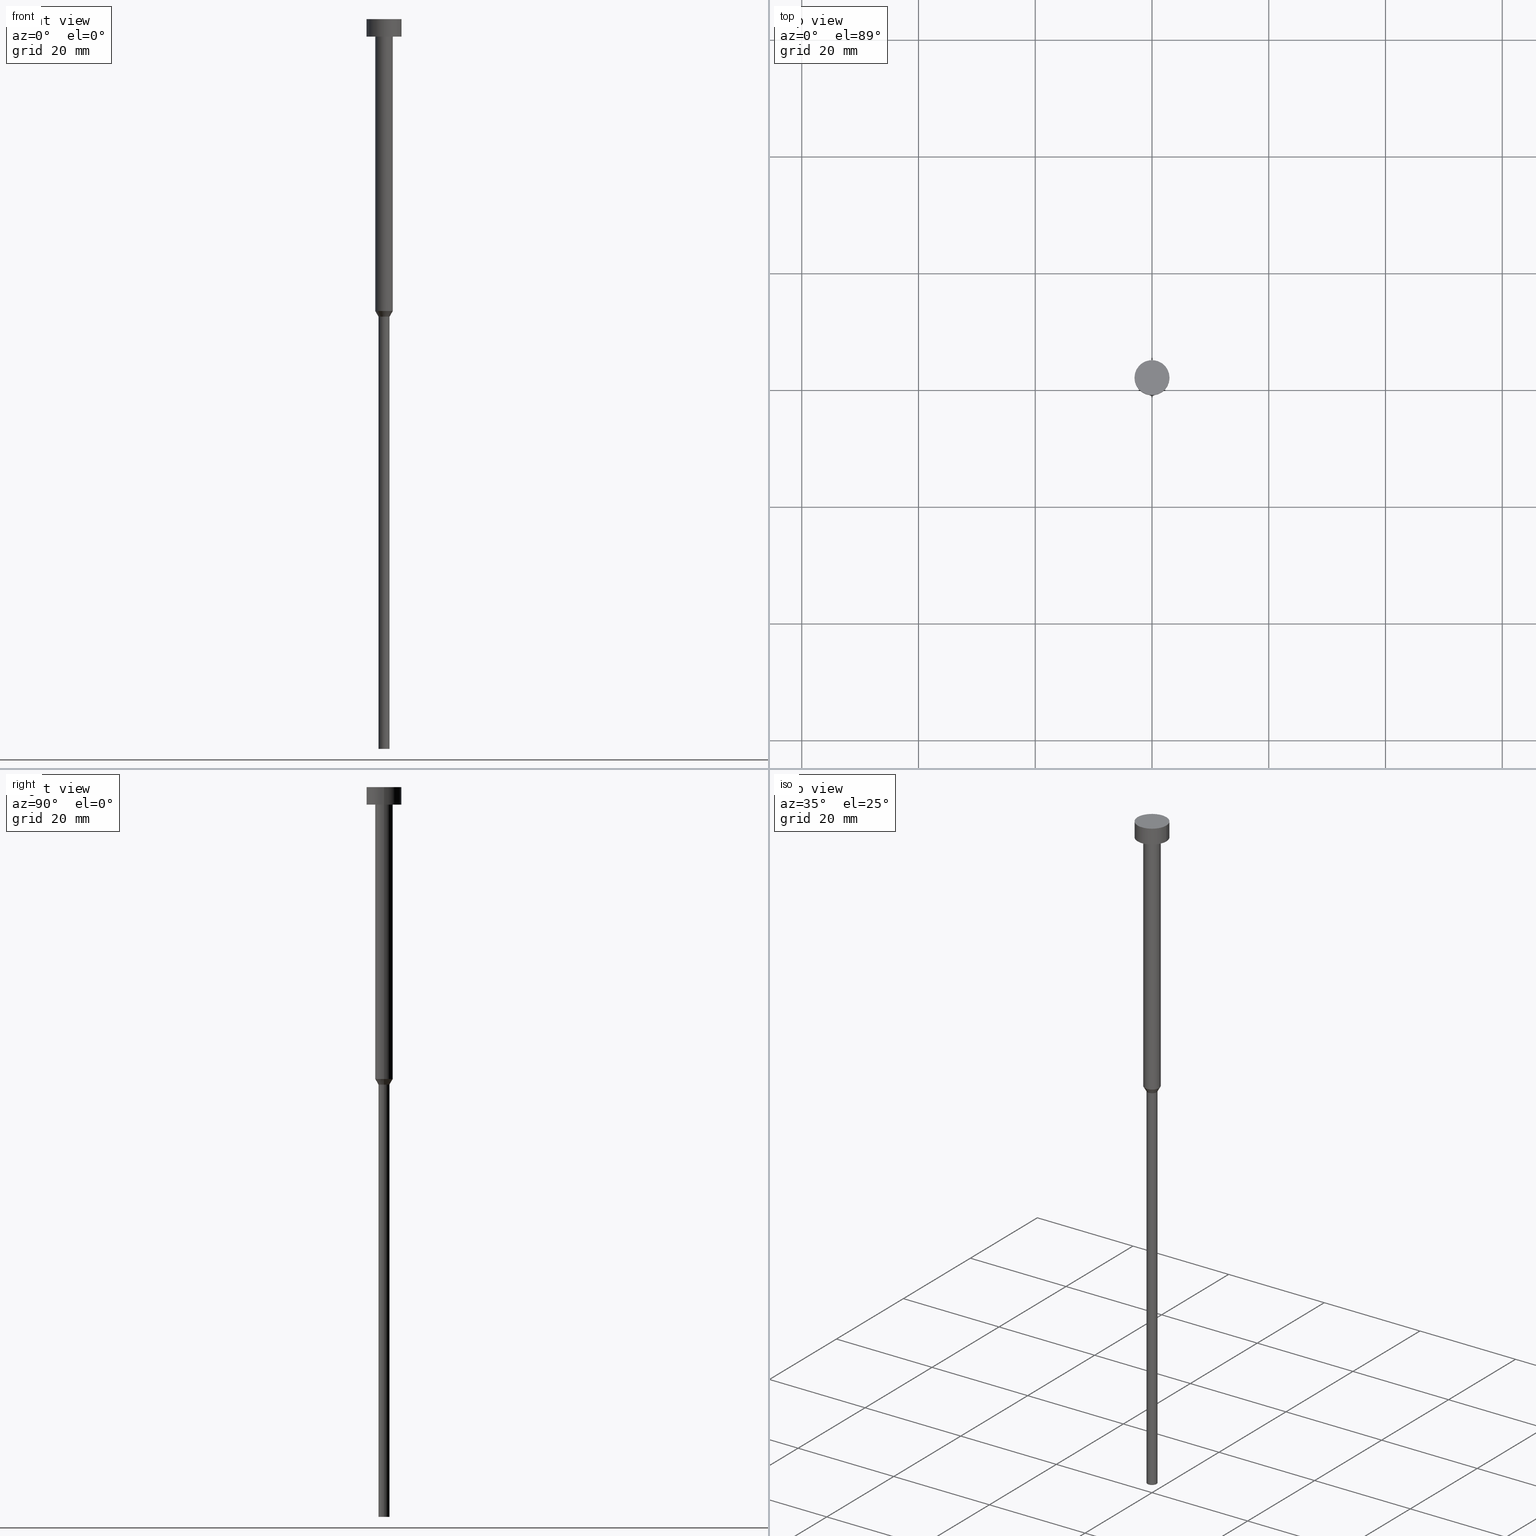
[diagram: canonical four-view strip — front | top / right | iso, engineering-drawing reading convention]
A machine part, canonical four-view strip (front | top / right | iso — engineering-drawing reading convention). The complete STEP part file that produces these views, byte-faithful:
ISO-10303-21;
HEADER;
FILE_DESCRIPTION (( 'STEP AP203' ),
    '1' );
FILE_NAME ('d028.STEP',
    '2023-02-13T10:04:01',
    ( '' ),
    ( '' ),
    'SwSTEP 2.0',
    'SolidWorks 2019',
    '' );
FILE_SCHEMA (( 'CONFIG_CONTROL_DESIGN' ));
ENDSEC;

DATA;
#1 = FACE_OUTER_BOUND ( 'NONE', #224, .T. ) ;
#2 = CARTESIAN_POINT ( 'NONE',  ( 1.500000000000000000, 0.000000000000000000, -50.00000000000000000 ) ) ;
#3 = CARTESIAN_POINT ( 'NONE',  ( 0.000000000000000000, 0.000000000000000000, 0.000000000000000000 ) ) ;
#4 = AXIS2_PLACEMENT_3D ( 'NONE', #69, #143, #247 ) ;
#5 = DIRECTION ( 'NONE',  ( 1.000000000000000000, 0.000000000000000000, 0.000000000000000000 ) ) ;
#6 = ORIENTED_EDGE ( 'NONE', *, *, #353, .F. ) ;
#7 = CIRCLE ( 'NONE', #283, 1.500000000000000000 ) ;
#8 = APPROVAL ( #25, 'NEUR�EN�' ) ;
#9 = EDGE_LOOP ( 'NONE', ( #169, #315 ) ) ;
#10 = VERTEX_POINT ( 'NONE', #78 ) ;
#11 = AXIS2_PLACEMENT_3D ( 'NONE', #322, #260, #327 ) ;
#12 = EDGE_CURVE ( 'NONE', #10, #193, #319, .T. ) ;
#13 = AXIS2_PLACEMENT_3D ( 'NONE', #232, #118, #313 ) ;
#14 = ORIENTED_EDGE ( 'NONE', *, *, #74, .T. ) ;
#15 = CARTESIAN_POINT ( 'NONE',  ( -1.500000000000000000, 1.836970198721029934E-16, -3.000000000000000888 ) ) ;
#16 = PERSON_AND_ORGANIZATION ( #113, #88 ) ;
#17 = ORIENTED_EDGE ( 'NONE', *, *, #294, .F. ) ;
#18 = DIRECTION ( 'NONE',  ( 1.000000000000000000, 0.000000000000000000, 0.000000000000000000 ) ) ;
#19 = EDGE_CURVE ( 'NONE', #193, #343, #46, .T. ) ;
#20 = CALENDAR_DATE ( 2023, 13, 2 ) ;
#21 = CARTESIAN_POINT ( 'NONE',  ( 0.000000000000000000, 0.000000000000000000, 0.000000000000000000 ) ) ;
#22 = CARTESIAN_POINT ( 'NONE',  ( 0.000000000000000000, 0.000000000000000000, -3.673940397442059868E-16 ) ) ;
#23 = DIRECTION ( 'NONE',  ( -0.000000000000000000, -0.000000000000000000, 1.000000000000000000 ) ) ;
#24 = CARTESIAN_POINT ( 'NONE',  ( 0.000000000000000000, 0.000000000000000000, -50.00000000000000000 ) ) ;
#25 = APPROVAL_STATUS ( 'not_yet_approved' ) ;
#26 = CC_DESIGN_PERSON_AND_ORGANIZATION_ASSIGNMENT ( #276, #106, ( #215 ) ) ;
#27 = CARTESIAN_POINT ( 'NONE',  ( -3.000000000000000000, 3.673940397442059868E-16, 0.000000000000000000 ) ) ;
#28 = DIRECTION ( 'NONE',  ( 1.000000000000000000, 0.000000000000000000, 0.000000000000000000 ) ) ;
#29 = DIRECTION ( 'NONE',  ( -0.000000000000000000, -0.000000000000000000, 1.000000000000000000 ) ) ;
#30 = CIRCLE ( 'NONE', #166, 3.000000000000000000 ) ;
#31 = AXIS2_PLACEMENT_3D ( 'NONE', #264, #142, #270 ) ;
#32 = PLANE ( 'NONE',  #289 ) ;
#33 = LINE ( 'NONE', #105, #341 ) ;
#34 = FACE_OUTER_BOUND ( 'NONE', #281, .T. ) ;
#35 = ADVANCED_FACE ( 'NONE', ( #104 ), #223, .T. ) ;
#36 = PERSON_AND_ORGANIZATION ( #113, #88 ) ;
#37 = ORIENTED_EDGE ( 'NONE', *, *, #122, .F. ) ;
#38 = EDGE_CURVE ( 'NONE', #266, #95, #222, .T. ) ;
#39 = PERSON_AND_ORGANIZATION ( #113, #88 ) ;
#40 = EDGE_LOOP ( 'NONE', ( #173, #130, #158, #109 ) ) ;
#41 = ORIENTED_EDGE ( 'NONE', *, *, #19, .F. ) ;
#42 = FACE_OUTER_BOUND ( 'NONE', #9, .T. ) ;
#43 = ORIENTED_EDGE ( 'NONE', *, *, #74, .F. ) ;
#44 = APPLICATION_CONTEXT ( 'configuration controlled 3d designs of mechanical parts and assemblies' ) ;
#45 = DIRECTION ( 'NONE',  ( 0.000000000000000000, 0.000000000000000000, -1.000000000000000000 ) ) ;
#46 = LINE ( 'NONE', #349, #216 ) ;
#47 = EDGE_CURVE ( 'NONE', #188, #159, #308, .T. ) ;
#48 = VERTEX_POINT ( 'NONE', #119 ) ;
#49 = CARTESIAN_POINT ( 'NONE',  ( 0.000000000000000000, 0.000000000000000000, 0.000000000000000000 ) ) ;
#50 = AXIS2_PLACEMENT_3D ( 'NONE', #196, #55, #28 ) ;
#51 = ADVANCED_FACE ( 'NONE', ( #146, #279 ), #32, .T. ) ;
#52 = CARTESIAN_POINT ( 'NONE',  ( 0.000000000000000000, 0.000000000000000000, -50.95262794416287733 ) ) ;
#53 = AXIS2_PLACEMENT_3D ( 'NONE', #282, #67, #189 ) ;
#54 = CYLINDRICAL_SURFACE ( 'NONE', #93, 1.500000000000000000 ) ;
#55 = DIRECTION ( 'NONE',  ( 0.000000000000000000, -0.000000000000000000, 1.000000000000000000 ) ) ;
#56 = DIRECTION ( 'NONE',  ( -0.000000000000000000, -0.000000000000000000, 1.000000000000000000 ) ) ;
#57 = MANIFOLD_SOLID_BREP ( 'Rotovat1', #121 ) ;
#58 = AXIS2_PLACEMENT_3D ( 'NONE', #133, #298, #228 ) ;
#59 = CIRCLE ( 'NONE', #352, 3.000000000000000000 ) ;
#60 = ADVANCED_FACE ( 'NONE', ( #140 ), #107, .T. ) ;
#61 = SECURITY_CLASSIFICATION_LEVEL ( 'unclassified' ) ;
#62 = ORIENTED_EDGE ( 'NONE', *, *, #345, .F. ) ;
#63 = ORIENTED_EDGE ( 'NONE', *, *, #38, .T. ) ;
#64 = CC_DESIGN_APPROVAL ( #340, ( #215 ) ) ;
#65 = ORIENTED_EDGE ( 'NONE', *, *, #210, .F. ) ;
#66 = APPROVAL_STATUS ( 'not_yet_approved' ) ;
#67 = DIRECTION ( 'NONE',  ( -0.000000000000000000, -0.000000000000000000, 1.000000000000000000 ) ) ;
#68 = DIRECTION ( 'NONE',  ( 1.000000000000000000, 0.000000000000000000, 0.000000000000000000 ) ) ;
#69 = CARTESIAN_POINT ( 'NONE',  ( 0.000000000000000000, 0.000000000000000000, -125.0000000000000000 ) ) ;
#70 = ORIENTED_EDGE ( 'NONE', *, *, #149, .T. ) ;
#71 = CIRCLE ( 'NONE', #198, 3.000000000000000000 ) ;
#72 = EDGE_LOOP ( 'NONE', ( #211, #344 ) ) ;
#73 = ORIENTED_EDGE ( 'NONE', *, *, #47, .T. ) ;
#74 = EDGE_CURVE ( 'NONE', #131, #159, #7, .T. ) ;
#75 = SHAPE_DEFINITION_REPRESENTATION ( #206, #259 ) ;
#76 = COORDINATED_UNIVERSAL_TIME_OFFSET ( 1, 0, .AHEAD. ) ;
#77 = UNCERTAINTY_MEASURE_WITH_UNIT (LENGTH_MEASURE( 1.000000000000000082E-05 ), #286, 'distance_accuracy_value', 'NONE');
#78 = CARTESIAN_POINT ( 'NONE',  ( -0.9499999999999998446, 1.163414459189985682E-16, -125.0000000000000000 ) ) ;
#79 = DATE_TIME_ROLE ( 'classification_date' ) ;
#80 = DIRECTION ( 'NONE',  ( -0.000000000000000000, -0.000000000000000000, 1.000000000000000000 ) ) ;
#81 = SECURITY_CLASSIFICATION ( '', '', #61 ) ;
#82 = VERTEX_POINT ( 'NONE', #15 ) ;
#83 = CC_DESIGN_DATE_AND_TIME_ASSIGNMENT ( #325, #79, ( #81 ) ) ;
#84 = CIRCLE ( 'NONE', #91, 0.9499999999999998446 ) ;
#85 = COORDINATED_UNIVERSAL_TIME_OFFSET ( 1, 0, .AHEAD. ) ;
#86 = FACE_OUTER_BOUND ( 'NONE', #40, .T. ) ;
#87 = CARTESIAN_POINT ( 'NONE',  ( 1.500000000000000000, 0.000000000000000000, -50.00000000000000000 ) ) ;
#88 = ORGANIZATION ( 'NEUR�EN�', 'NEUR�EN�', '' ) ;
#89 = LINE ( 'NONE', #305, #220 ) ;
#90 = DIRECTION ( 'NONE',  ( -0.000000000000000000, -0.000000000000000000, 1.000000000000000000 ) ) ;
#91 = AXIS2_PLACEMENT_3D ( 'NONE', #231, #23, #234 ) ;
#92 = CARTESIAN_POINT ( 'NONE',  ( -3.000000000000000000, 3.673940397442059868E-16, -3.000000000000000888 ) ) ;
#93 = AXIS2_PLACEMENT_3D ( 'NONE', #183, #115, #5 ) ;
#94 = CARTESIAN_POINT ( 'NONE',  ( 0.000000000000000000, 0.000000000000000000, -3.000000000000000888 ) ) ;
#95 = VERTEX_POINT ( 'NONE', #293 ) ;
#96 = ORIENTED_EDGE ( 'NONE', *, *, #345, .T. ) ;
#97 = ORIENTED_EDGE ( 'NONE', *, *, #203, .T. ) ;
#98 = ADVANCED_FACE ( 'NONE', ( #42 ), #219, .T. ) ;
#99 = APPROVAL_PERSON_ORGANIZATION ( #200, #340, #112 ) ;
#100 = CALENDAR_DATE ( 2023, 13, 2 ) ;
#101 = EDGE_LOOP ( 'NONE', ( #17, #164 ) ) ;
#102 = EDGE_LOOP ( 'NONE', ( #6, #318, #301, #65 ) ) ;
#103 = EDGE_CURVE ( 'NONE', #343, #188, #214, .T. ) ;
#104 = FACE_OUTER_BOUND ( 'NONE', #129, .T. ) ;
#105 = CARTESIAN_POINT ( 'NONE',  ( 3.000000000000000000, 0.000000000000000000, 0.000000000000000000 ) ) ;
#106 = PERSON_AND_ORGANIZATION_ROLE ( 'creator' ) ;
#107 = CYLINDRICAL_SURFACE ( 'NONE', #218, 3.000000000000000000 ) ;
#108 = EDGE_CURVE ( 'NONE', #193, #10, #84, .T. ) ;
#109 = ORIENTED_EDGE ( 'NONE', *, *, #203, .F. ) ;
#110 = DIRECTION ( 'NONE',  ( -0.000000000000000000, -0.000000000000000000, 1.000000000000000000 ) ) ;
#111 = AXIS2_PLACEMENT_3D ( 'NONE', #256, #56, #208 ) ;
#112 = APPROVAL_ROLE ( '' ) ;
#113 = PERSON ( 'NEUR�EN�', 'NEUR�EN�', 'NEUR�EN�', ('NEUR�EN�'), ('NEUR�EN�'), ('NEUR�EN�') ) ;
#114 = LINE ( 'NONE', #150, #127 ) ;
#115 = DIRECTION ( 'NONE',  ( -0.000000000000000000, -0.000000000000000000, 1.000000000000000000 ) ) ;
#116 = LOCAL_TIME ( 11, 4, 1.000000000000000000, #76 ) ;
#117 = APPLICATION_PROTOCOL_DEFINITION ( 'international standard', 'config_control_design', 1994, #44 ) ;
#118 = DIRECTION ( 'NONE',  ( -0.000000000000000000, -0.000000000000000000, 1.000000000000000000 ) ) ;
#119 = CARTESIAN_POINT ( 'NONE',  ( 1.500000000000000000, 0.000000000000000000, -3.000000000000000888 ) ) ;
#120 = DIRECTION ( 'NONE',  ( 1.000000000000000000, 0.000000000000000000, 0.000000000000000000 ) ) ;
#121 = CLOSED_SHELL ( 'NONE', ( #35, #197, #310, #314, #98, #192, #321, #258, #51, #60, #167 ) ) ;
#122 = EDGE_CURVE ( 'NONE', #131, #48, #114, .T. ) ;
#123 = CARTESIAN_POINT ( 'NONE',  ( 0.9500000000000000666, 0.000000000000000000, -50.95262794416287733 ) ) ;
#124 = CARTESIAN_POINT ( 'NONE',  ( 3.000000000000000000, 0.000000000000000000, -3.000000000000000888 ) ) ;
#125 = APPROVAL_PERSON_ORGANIZATION ( #148, #8, #347 ) ;
#126 = DIRECTION ( 'NONE',  ( -0.000000000000000000, -0.000000000000000000, 1.000000000000000000 ) ) ;
#127 = VECTOR ( 'NONE', #330, 1000.000000000000000 ) ;
#128 = ORIENTED_EDGE ( 'NONE', *, *, #103, .F. ) ;
#129 = EDGE_LOOP ( 'NONE', ( #285, #63, #217, #62 ) ) ;
#130 = ORIENTED_EDGE ( 'NONE', *, *, #12, .T. ) ;
#131 = VERTEX_POINT ( 'NONE', #2 ) ;
#132 = LOCAL_TIME ( 11, 4, 1.000000000000000000, #174 ) ;
#133 = CARTESIAN_POINT ( 'NONE',  ( 0.000000000000000000, 0.000000000000000000, 0.000000000000000000 ) ) ;
#134 = CARTESIAN_POINT ( 'NONE',  ( 0.000000000000000000, 0.000000000000000000, -50.00000000000000000 ) ) ;
#135 = EDGE_LOOP ( 'NONE', ( #194, #287, #96, #195 ) ) ;
#136 = AXIS2_PLACEMENT_3D ( 'NONE', #3, #338, #253 ) ;
#137 = ORIENTED_EDGE ( 'NONE', *, *, #210, .T. ) ;
#138 = VERTEX_POINT ( 'NONE', #335 ) ;
#139 = APPROVAL ( #66, 'NEUR�EN�' ) ;
#140 = FACE_OUTER_BOUND ( 'NONE', #135, .T. ) ;
#141 = VECTOR ( 'NONE', #299, 1000.000000000000000 ) ;
#142 = DIRECTION ( 'NONE',  ( 0.000000000000000000, 0.000000000000000000, -1.000000000000000000 ) ) ;
#143 = DIRECTION ( 'NONE',  ( -0.000000000000000000, -0.000000000000000000, 1.000000000000000000 ) ) ;
#144 = DIRECTION ( 'NONE',  ( -1.000000000000000000, 0.000000000000000000, -0.000000000000000000 ) ) ;
#145 = CALENDAR_DATE ( 2023, 13, 2 ) ;
#146 = FACE_BOUND ( 'NONE', #165, .T. ) ;
#147 = DIRECTION ( 'NONE',  ( -0.000000000000000000, -0.000000000000000000, 1.000000000000000000 ) ) ;
#148 = PERSON_AND_ORGANIZATION ( #113, #88 ) ;
#149 = EDGE_CURVE ( 'NONE', #10, #188, #89, .T. ) ;
#150 = CARTESIAN_POINT ( 'NONE',  ( 1.500000000000000000, 0.000000000000000000, 0.000000000000000000 ) ) ;
#151 = CARTESIAN_POINT ( 'NONE',  ( 0.9499999999999998446, 0.000000000000000000, -125.0000000000000000 ) ) ;
#152 = DIRECTION ( 'NONE',  ( -0.000000000000000000, -0.000000000000000000, 1.000000000000000000 ) ) ;
#153 = LOCAL_TIME ( 11, 4, 1.000000000000000000, #85 ) ;
#154 = DIRECTION ( 'NONE',  ( -0.5000000000000019984, 6.123233995736790688E-17, 0.8660254037844375974 ) ) ;
#155 = EDGE_CURVE ( 'NONE', #343, #131, #178, .T. ) ;
#156 = CYLINDRICAL_SURFACE ( 'NONE', #136, 1.500000000000000000 ) ;
#157 = PERSON_AND_ORGANIZATION_ROLE ( 'creator' ) ;
#158 = ORIENTED_EDGE ( 'NONE', *, *, #19, .T. ) ;
#159 = VERTEX_POINT ( 'NONE', #275 ) ;
#160 = ORIENTED_EDGE ( 'NONE', *, *, #240, .T. ) ;
#161 = DATE_AND_TIME ( #100, #170 ) ;
#162 = CALENDAR_DATE ( 2023, 13, 2 ) ;
#163 = DIRECTION ( 'NONE',  ( -0.000000000000000000, -0.000000000000000000, 1.000000000000000000 ) ) ;
#164 = ORIENTED_EDGE ( 'NONE', *, *, #331, .F. ) ;
#165 = EDGE_LOOP ( 'NONE', ( #160, #137 ) ) ;
#166 = AXIS2_PLACEMENT_3D ( 'NONE', #288, #163, #68 ) ;
#167 = ADVANCED_FACE ( 'NONE', ( #355 ), #201, .T. ) ;
#168 = MECHANICAL_CONTEXT ( 'NONE', #176, 'mechanical' ) ;
#169 = ORIENTED_EDGE ( 'NONE', *, *, #108, .F. ) ;
#170 = LOCAL_TIME ( 11, 4, 1.000000000000000000, #242 ) ;
#171 = VECTOR ( 'NONE', #252, 999.9999999999998863 ) ;
#172 = CARTESIAN_POINT ( 'NONE',  ( 0.000000000000000000, 0.000000000000000000, -50.00000000000000000 ) ) ;
#173 = ORIENTED_EDGE ( 'NONE', *, *, #149, .F. ) ;
#174 = COORDINATED_UNIVERSAL_TIME_OFFSET ( 1, 0, .AHEAD. ) ;
#175 = DIRECTION ( 'NONE',  ( 1.000000000000000000, 0.000000000000000000, 0.000000000000000000 ) ) ;
#176 = APPLICATION_CONTEXT ( 'configuration controlled 3d designs of mechanical parts and assemblies' ) ;
#177 = CC_DESIGN_PERSON_AND_ORGANIZATION_ASSIGNMENT ( #39, #320, ( #81 ) ) ;
#178 = LINE ( 'NONE', #87, #171 ) ;
#179 = DIRECTION ( 'NONE',  ( -0.000000000000000000, -0.000000000000000000, 1.000000000000000000 ) ) ;
#180 = APPROVAL_DATE_TIME ( #187, #340 ) ;
#181 = FACE_OUTER_BOUND ( 'NONE', #291, .T. ) ;
#182 = CC_DESIGN_APPROVAL ( #8, ( #333 ) ) ;
#183 = CARTESIAN_POINT ( 'NONE',  ( 0.000000000000000000, 0.000000000000000000, 0.000000000000000000 ) ) ;
#184 = CIRCLE ( 'NONE', #13, 1.500000000000000000 ) ;
#185 = LOCAL_TIME ( 11, 4, 1.000000000000000000, #230 ) ;
#186 = ORIENTED_EDGE ( 'NONE', *, *, #353, .T. ) ;
#187 = DATE_AND_TIME ( #241, #185 ) ;
#188 = VERTEX_POINT ( 'NONE', #328 ) ;
#189 = DIRECTION ( 'NONE',  ( 1.000000000000000000, 0.000000000000000000, 0.000000000000000000 ) ) ;
#190 = ORIENTED_EDGE ( 'NONE', *, *, #155, .T. ) ;
#191 = EDGE_LOOP ( 'NONE', ( #239, #73, #43, #317 ) ) ;
#192 = ADVANCED_FACE ( 'NONE', ( #86 ), #303, .T. ) ;
#193 = VERTEX_POINT ( 'NONE', #151 ) ;
#194 = ORIENTED_EDGE ( 'NONE', *, *, #38, .F. ) ;
#195 = ORIENTED_EDGE ( 'NONE', *, *, #248, .F. ) ;
#196 = CARTESIAN_POINT ( 'NONE',  ( 0.000000000000000000, 0.000000000000000000, -1.836970198721029934E-16 ) ) ;
#197 = ADVANCED_FACE ( 'NONE', ( #1 ), #156, .T. ) ;
#198 = AXIS2_PLACEMENT_3D ( 'NONE', #94, #202, #251 ) ;
#199 = DIRECTION ( 'NONE',  ( 1.000000000000000000, 0.000000000000000000, 0.000000000000000000 ) ) ;
#200 = PERSON_AND_ORGANIZATION ( #113, #88 ) ;
#201 = PLANE ( 'NONE',  #50 ) ;
#202 = DIRECTION ( 'NONE',  ( -0.000000000000000000, -0.000000000000000000, 1.000000000000000000 ) ) ;
#203 = EDGE_CURVE ( 'NONE', #188, #343, #280, .T. ) ;
#204 = DIRECTION ( 'NONE',  ( -0.000000000000000000, -0.000000000000000000, 1.000000000000000000 ) ) ;
#205 = VECTOR ( 'NONE', #154, 999.9999999999998863 ) ;
#206 = PRODUCT_DEFINITION_SHAPE ( 'NONE', 'NONE',  #215 ) ;
#207 = CARTESIAN_POINT ( 'NONE',  ( -1.500000000000000000, 1.836970198721029934E-16, -50.00000000000000000 ) ) ;
#208 = DIRECTION ( 'NONE',  ( 1.000000000000000000, 0.000000000000000000, 0.000000000000000000 ) ) ;
#209 = DIRECTION ( 'NONE',  ( 1.000000000000000000, 0.000000000000000000, 0.000000000000000000 ) ) ;
#210 = EDGE_CURVE ( 'NONE', #82, #48, #184, .T. ) ;
#211 = ORIENTED_EDGE ( 'NONE', *, *, #268, .T. ) ;
#212 = ORIENTED_EDGE ( 'NONE', *, *, #108, .T. ) ;
#213 = AXIS2_PLACEMENT_3D ( 'NONE', #271, #80, #255 ) ;
#214 = CIRCLE ( 'NONE', #267, 0.9500000000000000666 ) ;
#215 = PRODUCT_DEFINITION ( 'NEZN�M�', '', #333, #300 ) ;
#216 = VECTOR ( 'NONE', #290, 1000.000000000000000 ) ;
#217 = ORIENTED_EDGE ( 'NONE', *, *, #268, .F. ) ;
#218 = AXIS2_PLACEMENT_3D ( 'NONE', #49, #269, #18 ) ;
#219 = PLANE ( 'NONE',  #31 ) ;
#220 = VECTOR ( 'NONE', #179, 1000.000000000000000 ) ;
#221 = APPROVAL_DATE_TIME ( #350, #8 ) ;
#222 = LINE ( 'NONE', #27, #329 ) ;
#223 = CYLINDRICAL_SURFACE ( 'NONE', #11, 3.000000000000000000 ) ;
#224 = EDGE_LOOP ( 'NONE', ( #14, #186, #339, #37 ) ) ;
#225 = CARTESIAN_POINT ( 'NONE',  ( -1.500000000000000000, 1.836970198721029934E-16, 0.000000000000000000 ) ) ;
#226 = ORIENTED_EDGE ( 'NONE', *, *, #337, .F. ) ;
#227 = CIRCLE ( 'NONE', #312, 1.500000000000000000 ) ;
#228 = DIRECTION ( 'NONE',  ( 1.000000000000000000, 0.000000000000000000, 0.000000000000000000 ) ) ;
#229 = DIRECTION ( 'NONE',  ( 1.000000000000000000, 0.000000000000000000, 0.000000000000000000 ) ) ;
#230 = COORDINATED_UNIVERSAL_TIME_OFFSET ( 1, 0, .AHEAD. ) ;
#231 = CARTESIAN_POINT ( 'NONE',  ( 0.000000000000000000, 0.000000000000000000, -125.0000000000000000 ) ) ;
#232 = CARTESIAN_POINT ( 'NONE',  ( 0.000000000000000000, 0.000000000000000000, -3.000000000000000888 ) ) ;
#233 = CONICAL_SURFACE ( 'NONE', #284, 1.500000000000000000, 0.5235987755983011471 ) ;
#234 = DIRECTION ( 'NONE',  ( 1.000000000000000000, 0.000000000000000000, 0.000000000000000000 ) ) ;
#235 = CARTESIAN_POINT ( 'NONE',  ( 0.000000000000000000, 0.000000000000000000, -3.000000000000000888 ) ) ;
#236 = DIRECTION ( 'NONE',  ( -0.000000000000000000, -0.000000000000000000, 1.000000000000000000 ) ) ;
#237 = CIRCLE ( 'NONE', #265, 3.000000000000000000 ) ;
#238 = CARTESIAN_POINT ( 'NONE',  ( 0.000000000000000000, 0.000000000000000000, -3.673940397442059868E-16 ) ) ;
#239 = ORIENTED_EDGE ( 'NONE', *, *, #103, .T. ) ;
#240 = EDGE_CURVE ( 'NONE', #48, #82, #227, .T. ) ;
#241 = CALENDAR_DATE ( 2023, 13, 2 ) ;
#242 = COORDINATED_UNIVERSAL_TIME_OFFSET ( 1, 0, .AHEAD. ) ;
#243 = PERSON_AND_ORGANIZATION ( #113, #88 ) ;
#244 = CC_DESIGN_PERSON_AND_ORGANIZATION_ASSIGNMENT ( #36, #157, ( #333 ) ) ;
#245 =( GEOMETRIC_REPRESENTATION_CONTEXT ( 3 ) GLOBAL_UNCERTAINTY_ASSIGNED_CONTEXT ( ( #77 ) ) GLOBAL_UNIT_ASSIGNED_CONTEXT ( ( #286, #304, #273 ) ) REPRESENTATION_CONTEXT ( 'NONE', 'WORKASPACE' ) );
#246 = VERTEX_POINT ( 'NONE', #124 ) ;
#247 = DIRECTION ( 'NONE',  ( 1.000000000000000000, 0.000000000000000000, 0.000000000000000000 ) ) ;
#248 = EDGE_CURVE ( 'NONE', #95, #138, #59, .T. ) ;
#249 = CARTESIAN_POINT ( 'NONE',  ( 0.000000000000000000, -3.000000000000000000, -3.000000000000000888 ) ) ;
#250 = APPROVAL_STATUS ( 'not_yet_approved' ) ;
#251 = DIRECTION ( 'NONE',  ( 1.000000000000000000, 0.000000000000000000, 0.000000000000000000 ) ) ;
#252 = DIRECTION ( 'NONE',  ( 0.5000000000000019984, 0.000000000000000000, 0.8660254037844375974 ) ) ;
#253 = DIRECTION ( 'NONE',  ( 1.000000000000000000, 0.000000000000000000, 0.000000000000000000 ) ) ;
#254 = DIRECTION ( 'NONE',  ( 1.000000000000000000, 0.000000000000000000, 0.000000000000000000 ) ) ;
#255 = DIRECTION ( 'NONE',  ( 1.000000000000000000, 0.000000000000000000, 0.000000000000000000 ) ) ;
#256 = CARTESIAN_POINT ( 'NONE',  ( 0.000000000000000000, 0.000000000000000000, -50.95262794416287733 ) ) ;
#257 = DATE_TIME_ROLE ( 'creation_date' ) ;
#258 = ADVANCED_FACE ( 'NONE', ( #274 ), #54, .T. ) ;
#259 = ADVANCED_BREP_SHAPE_REPRESENTATION ( 'd028', ( #57, #58 ), #245 ) ;
#260 = DIRECTION ( 'NONE',  ( -0.000000000000000000, -0.000000000000000000, 1.000000000000000000 ) ) ;
#261 = AXIS2_PLACEMENT_3D ( 'NONE', #24, #29, #254 ) ;
#262 = ORIENTED_EDGE ( 'NONE', *, *, #47, .F. ) ;
#263 = CC_DESIGN_DATE_AND_TIME_ASSIGNMENT ( #354, #257, ( #215 ) ) ;
#264 = CARTESIAN_POINT ( 'NONE',  ( 0.000000000000000000, 0.000000000000000000, -125.0000000000000000 ) ) ;
#265 = AXIS2_PLACEMENT_3D ( 'NONE', #238, #204, #309 ) ;
#266 = VERTEX_POINT ( 'NONE', #92 ) ;
#267 = AXIS2_PLACEMENT_3D ( 'NONE', #52, #272, #175 ) ;
#268 = EDGE_CURVE ( 'NONE', #138, #95, #237, .T. ) ;
#269 = DIRECTION ( 'NONE',  ( -0.000000000000000000, -0.000000000000000000, 1.000000000000000000 ) ) ;
#270 = DIRECTION ( 'NONE',  ( -1.000000000000000000, 0.000000000000000000, -0.000000000000000000 ) ) ;
#271 = CARTESIAN_POINT ( 'NONE',  ( 0.000000000000000000, 0.000000000000000000, -50.00000000000000000 ) ) ;
#272 = DIRECTION ( 'NONE',  ( -0.000000000000000000, -0.000000000000000000, 1.000000000000000000 ) ) ;
#273 =( NAMED_UNIT ( * ) SI_UNIT ( $, .STERADIAN. ) SOLID_ANGLE_UNIT ( ) );
#274 = FACE_OUTER_BOUND ( 'NONE', #102, .T. ) ;
#275 = CARTESIAN_POINT ( 'NONE',  ( -1.500000000000000000, 1.836970198721029934E-16, -50.00000000000000000 ) ) ;
#276 = PERSON_AND_ORGANIZATION ( #113, #88 ) ;
#277 = CC_DESIGN_SECURITY_CLASSIFICATION ( #81, ( #333 ) ) ;
#278 = CYLINDRICAL_SURFACE ( 'NONE', #53, 0.9499999999999999556 ) ;
#279 = FACE_OUTER_BOUND ( 'NONE', #101, .T. ) ;
#280 = CIRCLE ( 'NONE', #111, 0.9500000000000000666 ) ;
#281 = EDGE_LOOP ( 'NONE', ( #262, #97, #190, #226 ) ) ;
#282 = CARTESIAN_POINT ( 'NONE',  ( 0.000000000000000000, 0.000000000000000000, 0.000000000000000000 ) ) ;
#283 = AXIS2_PLACEMENT_3D ( 'NONE', #172, #110, #229 ) ;
#284 = AXIS2_PLACEMENT_3D ( 'NONE', #134, #126, #209 ) ;
#285 = ORIENTED_EDGE ( 'NONE', *, *, #294, .T. ) ;
#286 =( LENGTH_UNIT ( ) NAMED_UNIT ( * ) SI_UNIT ( .MILLI., .METRE. ) );
#287 = ORIENTED_EDGE ( 'NONE', *, *, #331, .T. ) ;
#288 = CARTESIAN_POINT ( 'NONE',  ( 0.000000000000000000, 0.000000000000000000, -3.000000000000000888 ) ) ;
#289 = AXIS2_PLACEMENT_3D ( 'NONE', #249, #45, #144 ) ;
#290 = DIRECTION ( 'NONE',  ( -0.000000000000000000, -0.000000000000000000, 1.000000000000000000 ) ) ;
#291 = EDGE_LOOP ( 'NONE', ( #212, #70, #128, #41 ) ) ;
#292 = APPROVAL_DATE_TIME ( #161, #139 ) ;
#293 = CARTESIAN_POINT ( 'NONE',  ( -3.000000000000000000, 3.673940397442059868E-16, -3.673940397442059868E-16 ) ) ;
#294 = EDGE_CURVE ( 'NONE', #246, #266, #71, .T. ) ;
#295 = APPROVAL_ROLE ( '' ) ;
#296 = CONICAL_SURFACE ( 'NONE', #261, 1.500000000000000000, 0.5235987755983011471 ) ;
#297 = CC_DESIGN_PERSON_AND_ORGANIZATION_ASSIGNMENT ( #346, #334, ( #311 ) ) ;
#298 = DIRECTION ( 'NONE',  ( 0.000000000000000000, 0.000000000000000000, 1.000000000000000000 ) ) ;
#299 = DIRECTION ( 'NONE',  ( -0.000000000000000000, -0.000000000000000000, 1.000000000000000000 ) ) ;
#300 = DESIGN_CONTEXT ( 'detailed design', #44, 'design' ) ;
#301 = ORIENTED_EDGE ( 'NONE', *, *, #122, .T. ) ;
#302 = APPLICATION_PROTOCOL_DEFINITION ( 'international standard', 'config_control_design', 1994, #176 ) ;
#303 = CYLINDRICAL_SURFACE ( 'NONE', #336, 0.9499999999999999556 ) ;
#304 =( NAMED_UNIT ( * ) PLANE_ANGLE_UNIT ( ) SI_UNIT ( $, .RADIAN. ) );
#305 = CARTESIAN_POINT ( 'NONE',  ( -0.9499999999999999556, 1.163414459189985682E-16, 0.000000000000000000 ) ) ;
#306 = DIRECTION ( 'NONE',  ( 1.000000000000000000, 0.000000000000000000, 0.000000000000000000 ) ) ;
#307 = PRODUCT_RELATED_PRODUCT_CATEGORY ( 'detail', '', ( #311 ) ) ;
#308 = LINE ( 'NONE', #207, #205 ) ;
#309 = DIRECTION ( 'NONE',  ( 1.000000000000000000, 0.000000000000000000, 0.000000000000000000 ) ) ;
#310 = ADVANCED_FACE ( 'NONE', ( #332 ), #296, .T. ) ;
#311 = PRODUCT ( 'd028', 'd028', '', ( #168 ) ) ;
#312 = AXIS2_PLACEMENT_3D ( 'NONE', #235, #90, #306 ) ;
#313 = DIRECTION ( 'NONE',  ( 1.000000000000000000, 0.000000000000000000, 0.000000000000000000 ) ) ;
#314 = ADVANCED_FACE ( 'NONE', ( #181 ), #278, .T. ) ;
#315 = ORIENTED_EDGE ( 'NONE', *, *, #12, .F. ) ;
#316 = APPROVAL_PERSON_ORGANIZATION ( #16, #139, #295 ) ;
#317 = ORIENTED_EDGE ( 'NONE', *, *, #155, .F. ) ;
#318 = ORIENTED_EDGE ( 'NONE', *, *, #337, .T. ) ;
#319 = CIRCLE ( 'NONE', #4, 0.9499999999999998446 ) ;
#320 = PERSON_AND_ORGANIZATION_ROLE ( 'classification_officer' ) ;
#321 = ADVANCED_FACE ( 'NONE', ( #34 ), #233, .T. ) ;
#322 = CARTESIAN_POINT ( 'NONE',  ( 0.000000000000000000, 0.000000000000000000, 0.000000000000000000 ) ) ;
#323 = CC_DESIGN_PERSON_AND_ORGANIZATION_ASSIGNMENT ( #243, #342, ( #333 ) ) ;
#324 = LINE ( 'NONE', #225, #141 ) ;
#325 = DATE_AND_TIME ( #145, #153 ) ;
#326 = DIRECTION ( 'NONE',  ( -0.000000000000000000, -0.000000000000000000, 1.000000000000000000 ) ) ;
#327 = DIRECTION ( 'NONE',  ( 1.000000000000000000, 0.000000000000000000, 0.000000000000000000 ) ) ;
#328 = CARTESIAN_POINT ( 'NONE',  ( -0.9500000000000001776, 1.163414459189985929E-16, -50.95262794416287733 ) ) ;
#329 = VECTOR ( 'NONE', #236, 1000.000000000000000 ) ;
#330 = DIRECTION ( 'NONE',  ( -0.000000000000000000, -0.000000000000000000, 1.000000000000000000 ) ) ;
#331 = EDGE_CURVE ( 'NONE', #266, #246, #30, .T. ) ;
#332 = FACE_OUTER_BOUND ( 'NONE', #191, .T. ) ;
#333 = PRODUCT_DEFINITION_FORMATION_WITH_SPECIFIED_SOURCE ( 'LIBOVOLN�', '', #311, .NOT_KNOWN. ) ;
#334 = PERSON_AND_ORGANIZATION_ROLE ( 'design_owner' ) ;
#335 = CARTESIAN_POINT ( 'NONE',  ( 3.000000000000000000, 0.000000000000000000, -3.673940397442059868E-16 ) ) ;
#336 = AXIS2_PLACEMENT_3D ( 'NONE', #21, #147, #199 ) ;
#337 = EDGE_CURVE ( 'NONE', #159, #131, #351, .T. ) ;
#338 = DIRECTION ( 'NONE',  ( -0.000000000000000000, -0.000000000000000000, 1.000000000000000000 ) ) ;
#339 = ORIENTED_EDGE ( 'NONE', *, *, #240, .F. ) ;
#340 = APPROVAL ( #250, 'NEUR�EN�' ) ;
#341 = VECTOR ( 'NONE', #326, 1000.000000000000000 ) ;
#342 = PERSON_AND_ORGANIZATION_ROLE ( 'design_supplier' ) ;
#343 = VERTEX_POINT ( 'NONE', #123 ) ;
#344 = ORIENTED_EDGE ( 'NONE', *, *, #248, .T. ) ;
#345 = EDGE_CURVE ( 'NONE', #246, #138, #33, .T. ) ;
#346 = PERSON_AND_ORGANIZATION ( #113, #88 ) ;
#347 = APPROVAL_ROLE ( '' ) ;
#348 = CC_DESIGN_APPROVAL ( #139, ( #81 ) ) ;
#349 = CARTESIAN_POINT ( 'NONE',  ( 0.9499999999999999556, 0.000000000000000000, 0.000000000000000000 ) ) ;
#350 = DATE_AND_TIME ( #162, #116 ) ;
#351 = CIRCLE ( 'NONE', #213, 1.500000000000000000 ) ;
#352 = AXIS2_PLACEMENT_3D ( 'NONE', #22, #152, #120 ) ;
#353 = EDGE_CURVE ( 'NONE', #159, #82, #324, .T. ) ;
#354 = DATE_AND_TIME ( #20, #132 ) ;
#355 = FACE_OUTER_BOUND ( 'NONE', #72, .T. ) ;
ENDSEC;
END-ISO-10303-21;
